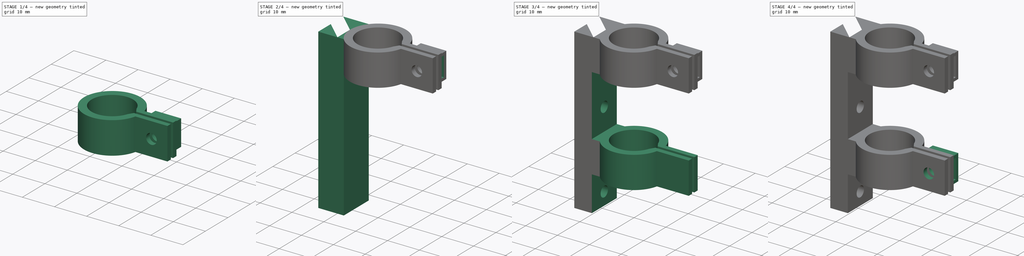
[diagram: build sequence overview — one tinted view per stage of 4, left to right]
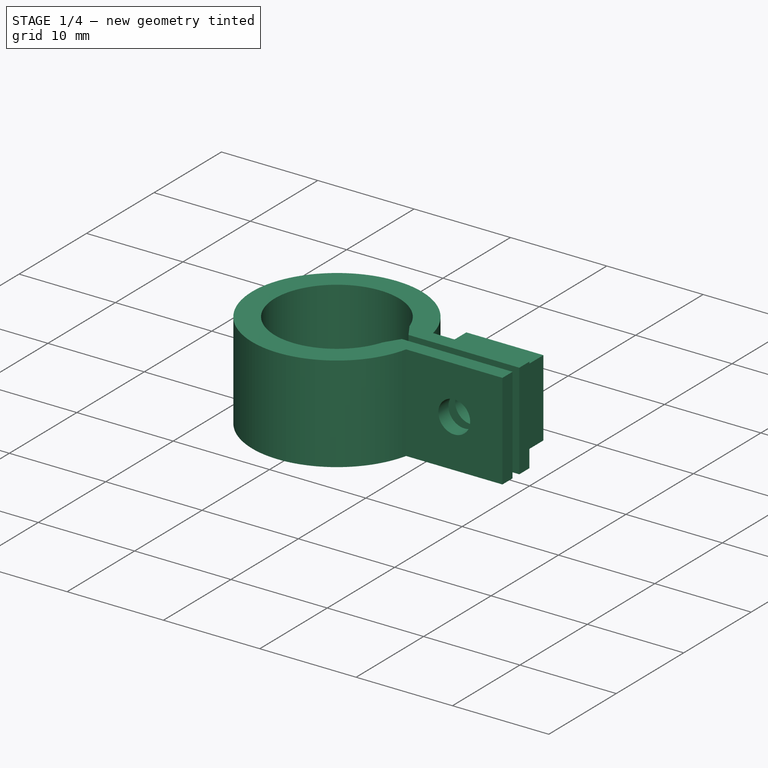
[diagram: stage 1 of 4 — iso view after this stage's code; geometry added in this stage tinted green]
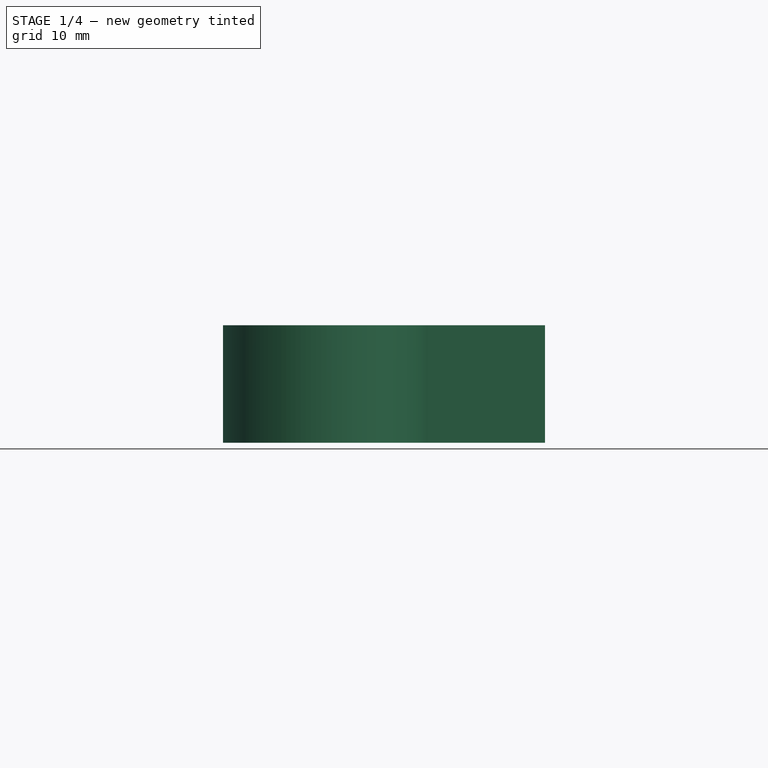
[diagram: stage 1 of 4 — front view after this stage's code; geometry added in this stage tinted green]
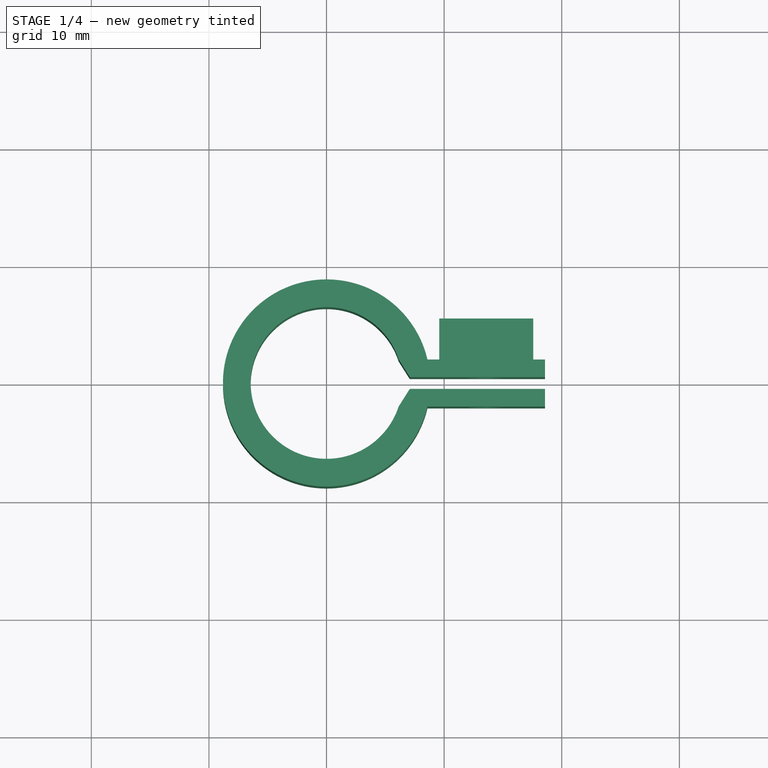
[diagram: stage 1 of 4 — top view after this stage's code; geometry added in this stage tinted green]
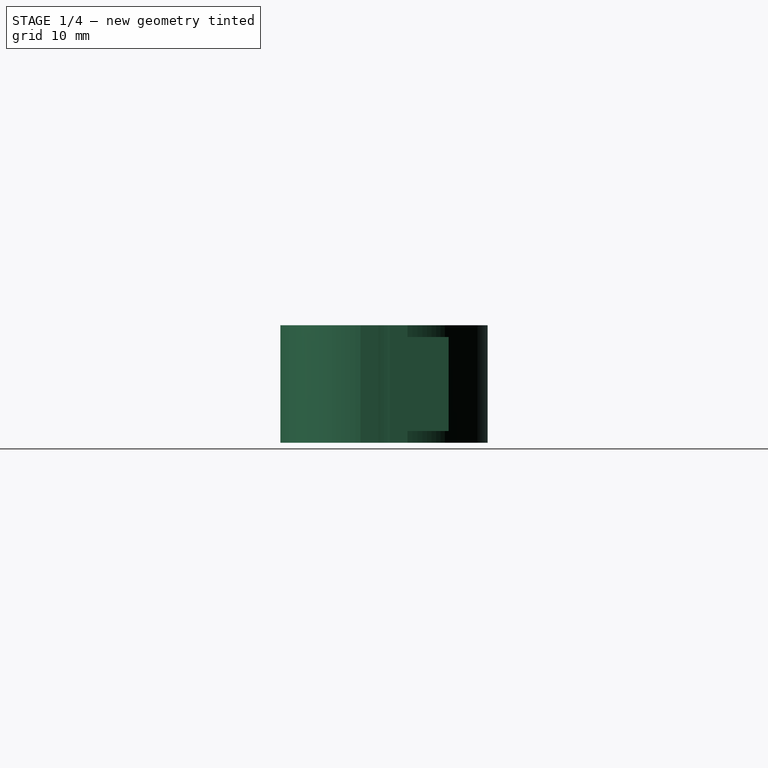
[diagram: stage 1 of 4 — right view after this stage's code; geometry added in this stage tinted green]
FCSTD DOCUMENT  (FreeCAD 0.18.4R)
Label: mount_boomarm
License: All rights reserved
LicenseURL: http://en.wikipedia.org/wiki/All_rights_reserved
objects: Sketcher::SketchObject×11, PartDesign::Pad×6, PartDesign::Hole×3, PartDesign::Pocket×3, PartDesign::Body×1
note: 36 computed .brp shape members not serialized (recipe doc carries the construction recipe); baked Part::Feature solids carry a one-line shape summary decoded from their .brp

FEATURE [Sketcher::SketchObject] Sketch
  MapMode = 5
  Support = -> [XY_Plane]
  sketch-geometry (13):
    g0: ArcOfCircle CenterX=0 CenterY=0 CenterZ=0 NormalX=0 NormalY=0 NormalZ=1 AngleXU=0 Radius=6.45 StartAngle=0.315275 EndAngle=5.96791
    g1: LineSegment [constr] StartX=6.13209 StartY=2 StartZ=0 EndX=6.13209 EndY=-2 EndZ=0
    g2: ArcOfCircle CenterX=0 CenterY=0 CenterZ=0 NormalX=0 NormalY=0 NormalZ=1 AngleXU=0 Radius=8.81 StartAngle=0.229011 EndAngle=6.05417
    g3: LineSegment [constr] StartX=6.13209 StartY=2 StartZ=0 EndX=8.57998 EndY=2 EndZ=0
    g4: LineSegment [constr] StartX=8.57998 StartY=-2 StartZ=0 EndX=6.13209 EndY=-2 EndZ=0
    g5: LineSegment StartX=8.57998 StartY=-2 StartZ=0 EndX=18.58 EndY=-2 EndZ=0
    g6: LineSegment StartX=18.58 StartY=-2 StartZ=0 EndX=18.58 EndY=-0.5 EndZ=0
    g7: LineSegment StartX=18.58 StartY=-0.5 StartZ=0 EndX=7.07998 EndY=-0.5 EndZ=0
    g8: LineSegment StartX=7.07998 StartY=-0.5 StartZ=0 EndX=6.13209 EndY=-2 EndZ=0
    g9: LineSegment StartX=6.13209 StartY=2 StartZ=0 EndX=7.07998 EndY=0.5 EndZ=0
    g10: LineSegment StartX=7.07998 StartY=0.5 StartZ=0 EndX=18.58 EndY=0.5 EndZ=0
    g11: LineSegment StartX=18.58 StartY=0.5 StartZ=0 EndX=18.58 EndY=2 EndZ=0
    g12: LineSegment StartX=18.58 StartY=2 StartZ=0 EndX=8.57998 EndY=2 EndZ=0
  constraints (36):
    c: Coincident(g0,g-1)
    c: Diameter(g0) = 12.9
    c: Coincident(g1,g0)
    c: Coincident(g1,g0)
    c: Vertical(g1)
    c: DistanceY(g1,g1) = 4
    c: Coincident(g2,g0)
    c: Coincident(g3,g0)
    c: Coincident(g3,g2)
    c: Horizontal(g3)
    c: Coincident(g4,g2)
    c: Coincident(g4,g0)
    c: Horizontal(g4)
    c: Coincident(g5,g2)
    c: Horizontal(g5)
    c: Coincident(g6,g5)
    c: Vertical(g6)
    c: Coincident(g7,g6)
    c: Horizontal(g7)
    c: Coincident(g8,g7)
    c: Coincident(g8,g0)
    c: Coincident(g9,g0)
    c: Coincident(g10,g9)
    c: Horizontal(g10)
    c: Vertical(g11)
    c: Coincident(g12,g11)
    c: Coincident(g12,g2)
    c: Horizontal(g12)
    c: Equal(g11,g6)
    c: Coincident(g11,g10)
    c: Equal(g7,g10)
    c: Equal(g5,g12)
    c: DistanceY(g11,g11) = 1.5
    c: DistanceX(g5,g5) = 10
    c: DistanceX(g7,g7) = 11.5
    c: Diameter(g2) = 17.62
FEATURE [PartDesign::Pad] Pad
  Length = 10
  Length2 = 100
  Profile = -> Sketch
  Type = 0
FEATURE [Sketcher::SketchObject] Sketch001
  ExternalGeometry = -> [Pad]
  MapMode = 5
  Placement = pos=(0,-2,0) rot=(1,0,0;1.5708rad)
  Support = -> [Pad]
  sketch-geometry (3):
    g0: Circle CenterX=13.58 CenterY=5 CenterZ=0 NormalX=0 NormalY=0 NormalZ=1 AngleXU=0 Radius=2.2
    g1: LineSegment [constr] StartX=13.58 StartY=10 StartZ=0 EndX=13.58 EndY=0 EndZ=0
    g2: LineSegment [constr] StartX=18.58 StartY=5 StartZ=0 EndX=0 EndY=5 EndZ=0
  constraints (9):
    c: PointOnObject(g1,g-1)
    c: Vertical(g1)
    c: PointOnObject(g2,g-2)
    c: Horizontal(g2)
    c: Symmetric(g-4,g-4,g2)
    c: Symmetric(g-4,g-3,g1)
    c: PointOnObject(g0,g1)
    c: PointOnObject(g0,g2)
    c: Diameter(g0) = 4.4
FEATURE [PartDesign::Hole] Hole
  BaseFeature = -> Pad
  Depth = 25
  DepthType = 1
  Diameter = 3.3
  DrillPoint = 1
  DrillPointAngle = 118
  HoleCutCountersinkAngle = 90
  HoleCutDepth = 0
  HoleCutDiameter = 3
  HoleCutType = 0
  ModelActualThread = false
  Profile = -> Sketch001
  Tapered = false
  TaperedAngle = 90
  ThreadAngle = 0
  ThreadClass = 0
  ThreadCutOffInner = 0
  ThreadCutOffOuter = 0
  ThreadDirection = 0
  ThreadFit = 0
  ThreadPitch = 0
  ThreadSize = 3
  ThreadType = 1
  Threaded = false
FEATURE [Sketcher::SketchObject] Sketch002
  ExternalGeometry = -> [Hole]
  MapMode = 5
  Placement = pos=(0,2,0) rot=(0,0.707107,0.707107;3.14159rad)
  Support = -> [Hole]
  sketch-geometry (4):
    g0: LineSegment StartX=-9.57998 StartY=9 StartZ=0 EndX=-17.58 EndY=9 EndZ=0
    g1: LineSegment StartX=-17.58 StartY=9 StartZ=0 EndX=-17.58 EndY=1 EndZ=0
    g2: LineSegment StartX=-17.58 StartY=1 StartZ=0 EndX=-9.57998 EndY=1 EndZ=0
    g3: LineSegment StartX=-9.57998 StartY=1 StartZ=0 EndX=-9.57998 EndY=9 EndZ=0
  constraints (11):
    c: Coincident(g0,g1)
    c: Coincident(g1,g2)
    c: Coincident(g2,g3)
    c: Coincident(g3,g0)
    c: Horizontal(g0)
    c: Horizontal(g2)
    c: Vertical(g1)
    c: Vertical(g3)
    c: Symmetric(g0,g1,g-3)
    c: DistanceY(g3,g3) = 8
    c: DistanceX(g0,g0) = 8
FEATURE [PartDesign::Pad] Pad001
  BaseFeature = -> Hole
  Length = 3.5
  Length2 = 100
  Profile = -> Sketch002
  Type = 0
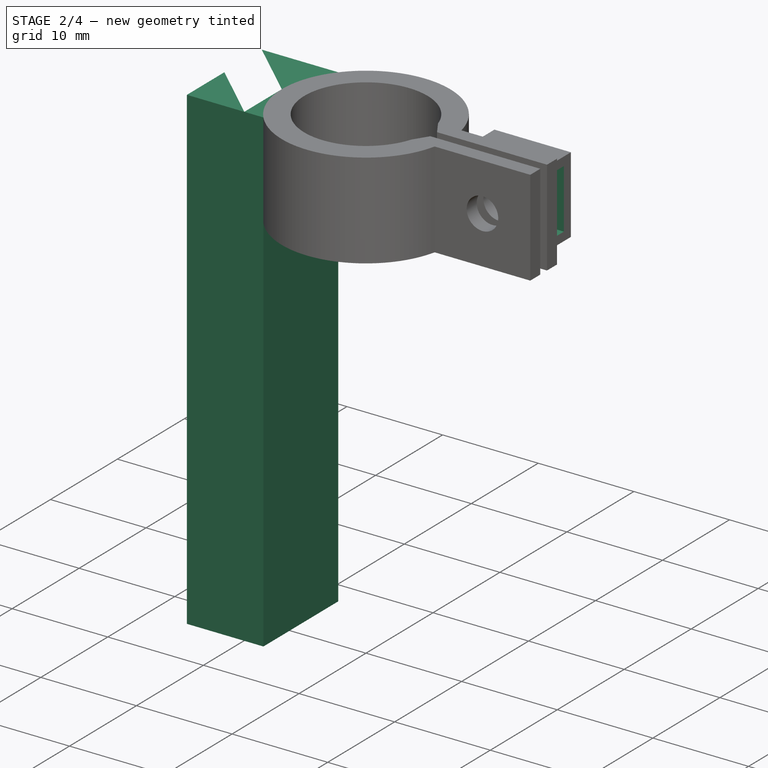
[diagram: stage 2 of 4 — iso view after this stage's code; geometry added in this stage tinted green]
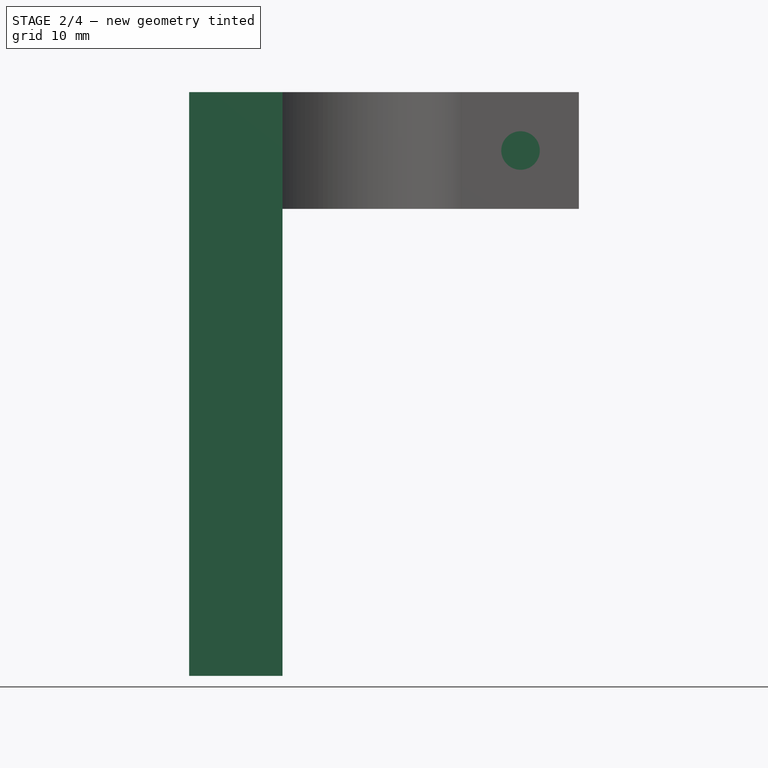
[diagram: stage 2 of 4 — front view after this stage's code; geometry added in this stage tinted green]
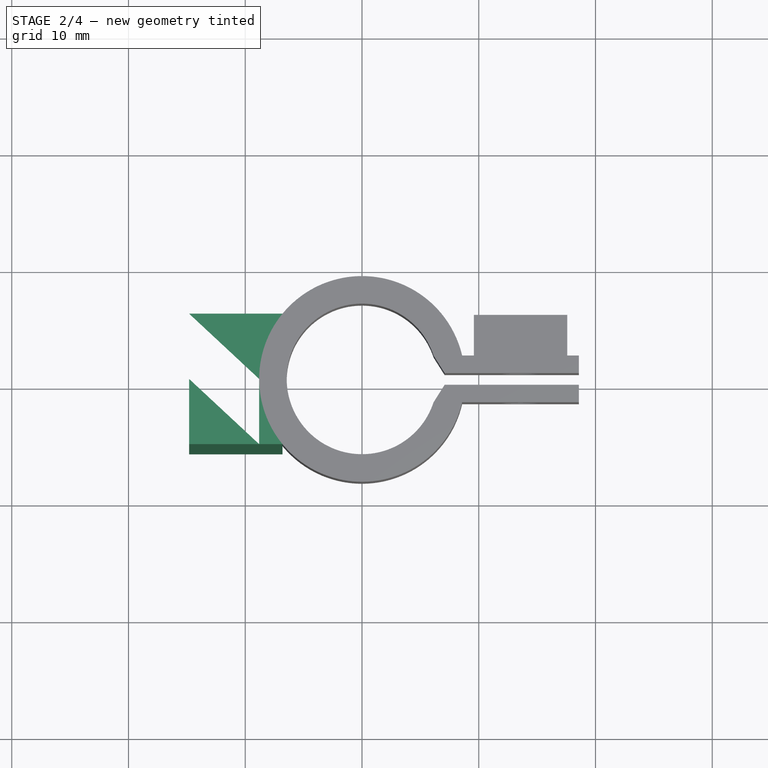
[diagram: stage 2 of 4 — top view after this stage's code; geometry added in this stage tinted green]
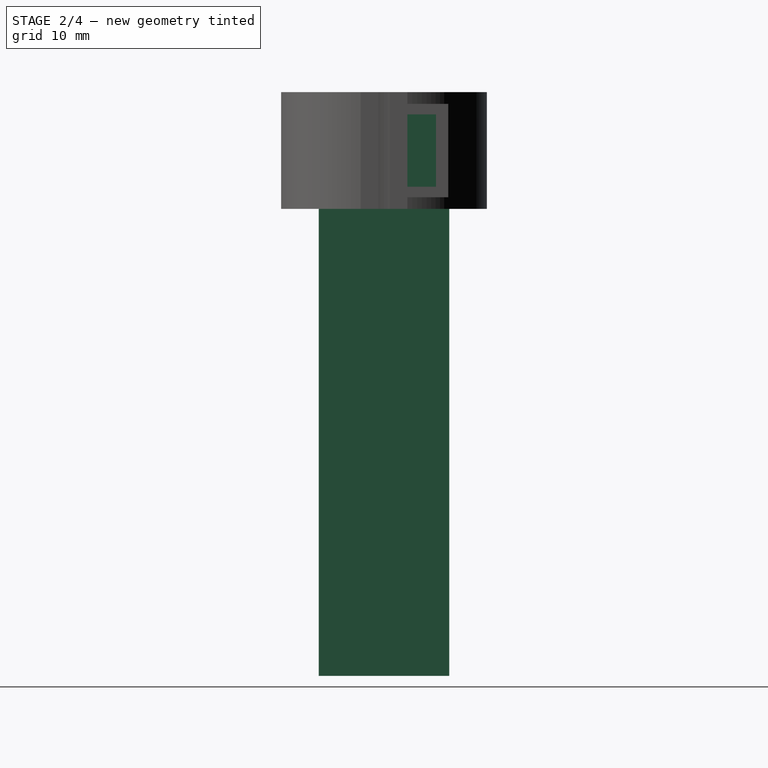
[diagram: stage 2 of 4 — right view after this stage's code; geometry added in this stage tinted green]
FEATURE [Sketcher::SketchObject] Sketch003
  ExternalGeometry = -> [Pad001]
  MapMode = 5
  Placement = pos=(17.58,0,0) rot=(0.57735,0.57735,0.57735;2.0944rad)
  Support = -> [Pad001]
  sketch-geometry (5):
    g0: LineSegment StartX=2 StartY=8.1 StartZ=0 EndX=4.45 EndY=8.1 EndZ=0
    g1: LineSegment StartX=4.45 StartY=8.1 StartZ=0 EndX=4.45 EndY=1.9 EndZ=0
    g2: LineSegment StartX=4.45 StartY=1.9 StartZ=0 EndX=2 EndY=1.9 EndZ=0
    g3: LineSegment StartX=2 StartY=1.9 StartZ=0 EndX=2 EndY=8.1 EndZ=0
    g4: GeomPoint X=2 Y=5 Z=0
  constraints (12):
    c: Coincident(g0,g1)
    c: Coincident(g1,g2)
    c: Coincident(g2,g3)
    c: Coincident(g3,g0)
    c: Horizontal(g0)
    c: Horizontal(g2)
    c: Vertical(g1)
    c: Vertical(g3)
    c: DistanceX(g2,g2) = 2.45
    c: DistanceY(g1,g1) = 6.2
    c: Symmetric(g0,g2,g4)
    c: Symmetric(g-3,g-3,g4)
FEATURE [PartDesign::Pocket] Pocket
  BaseFeature = -> Pad001
  Length = 7
  Length2 = 100
  Profile = -> Sketch003
  Type = 0
FEATURE [Sketcher::SketchObject] Sketch004
  ExternalGeometry = -> [Pocket]
  MapMode = 5
  Placement = pos=(0,0,10) rot=(0,0,1;0rad)
  Support = -> [Pocket]
  sketch-geometry (4):
    g0: LineSegment StartX=-6.81 StartY=5.58928 StartZ=0 EndX=-8.81 EndY=5.58928 EndZ=0
    g1: LineSegment StartX=-8.81 StartY=5.58928 StartZ=0 EndX=-8.81 EndY=-5.58928 EndZ=0
    g2: LineSegment StartX=-8.81 StartY=-5.58928 StartZ=0 EndX=-6.81 EndY=-5.58928 EndZ=0
    g3: LineSegment StartX=-6.81 StartY=-5.58928 StartZ=0 EndX=-6.81 EndY=5.58928 EndZ=0
  constraints (11):
    c: Coincident(g0,g1)
    c: Coincident(g1,g2)
    c: Coincident(g2,g3)
    c: Coincident(g3,g0)
    c: Horizontal(g0)
    c: Horizontal(g2)
    c: Vertical(g1)
    c: Tangent(g-3,g1)
    c: Symmetric(g0,g2,g-1)
    c: PointOnObject(g0,g-3)
    c: DistanceX(g0,g0) = 2
FEATURE [PartDesign::Pad] Pad002
  BaseFeature = -> Pocket
  Length = 50
  Length2 = 100
  Profile = -> Sketch004
  Reversed = true
  Type = 0
FEATURE [Sketcher::SketchObject] Sketch005
  ExternalGeometry = -> [Pad002]
  MapMode = 5
  Placement = pos=(-6.81,0,0) rot=(0.57735,0.57735,0.57735;2.0944rad)
  Support = -> [Pad002]
  sketch-geometry (2):
    g0: Circle CenterX=0 CenterY=-36 CenterZ=0 NormalX=0 NormalY=0 NormalZ=1 AngleXU=0 Radius=1.65
    g1: Circle CenterX=0 CenterY=-12 CenterZ=0 NormalX=0 NormalY=0 NormalZ=1 AngleXU=0 Radius=1.65
  constraints (6):
    c: PointOnObject(g0,g-2)
    c: PointOnObject(g1,g-2)
    c: DistanceY(g0,g1) = 24
    c: Equal(g0,g1)
    c: Diameter(g0) = 3.3
    c: DistanceY(g-3,g0) = 4
FEATURE [PartDesign::Pad] Pad003
  BaseFeature = -> Pad002
  Length = 6
  Length2 = 100
  Profile = -> Pad002 [Face33]
  Type = 0
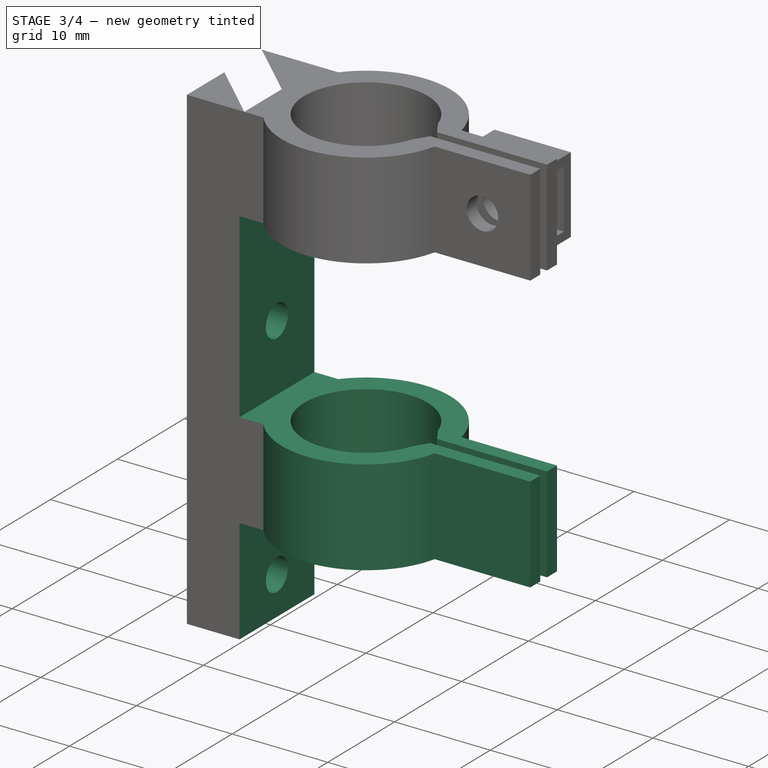
[diagram: stage 3 of 4 — iso view after this stage's code; geometry added in this stage tinted green]
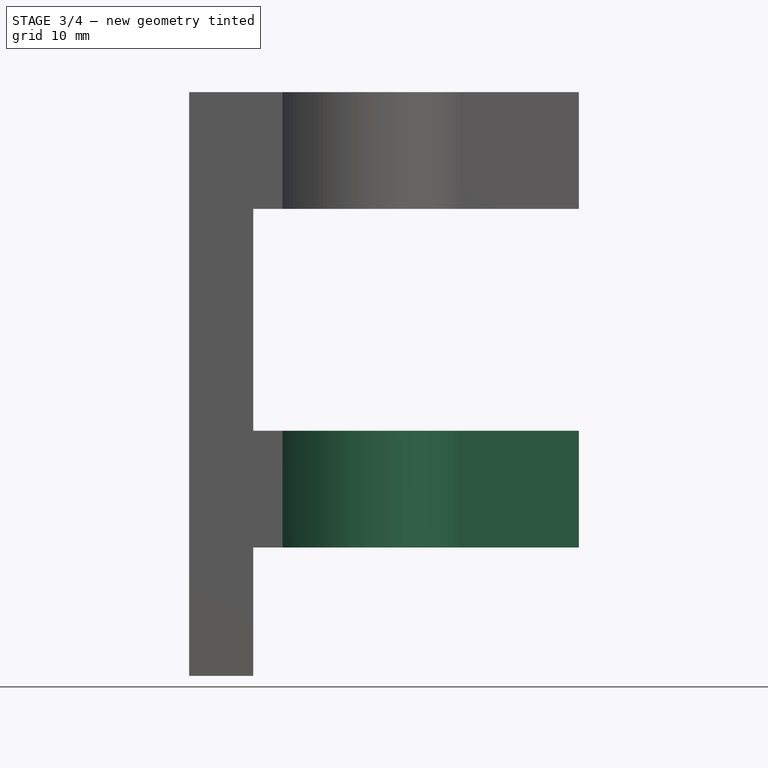
[diagram: stage 3 of 4 — front view after this stage's code; geometry added in this stage tinted green]
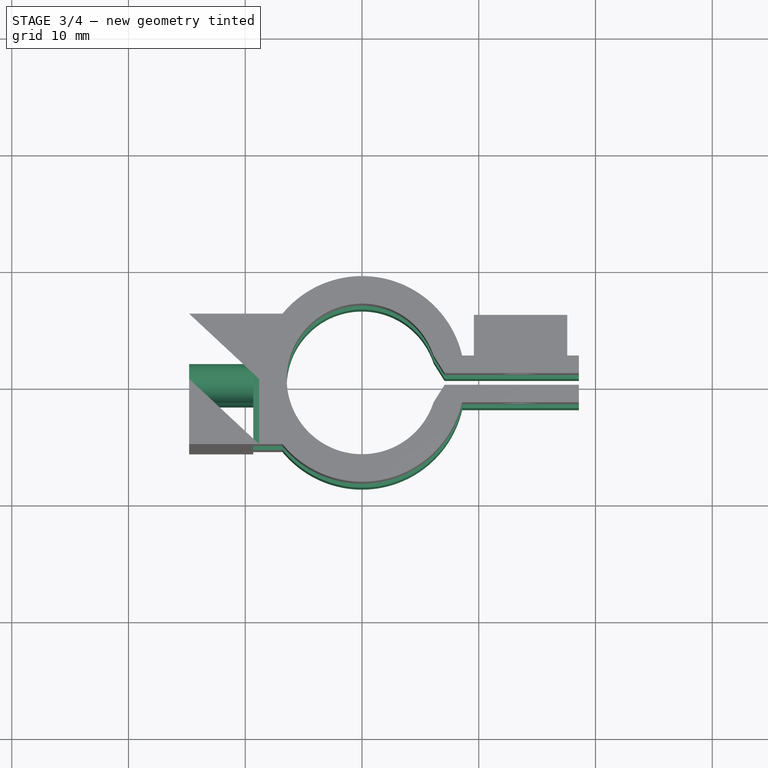
[diagram: stage 3 of 4 — top view after this stage's code; geometry added in this stage tinted green]
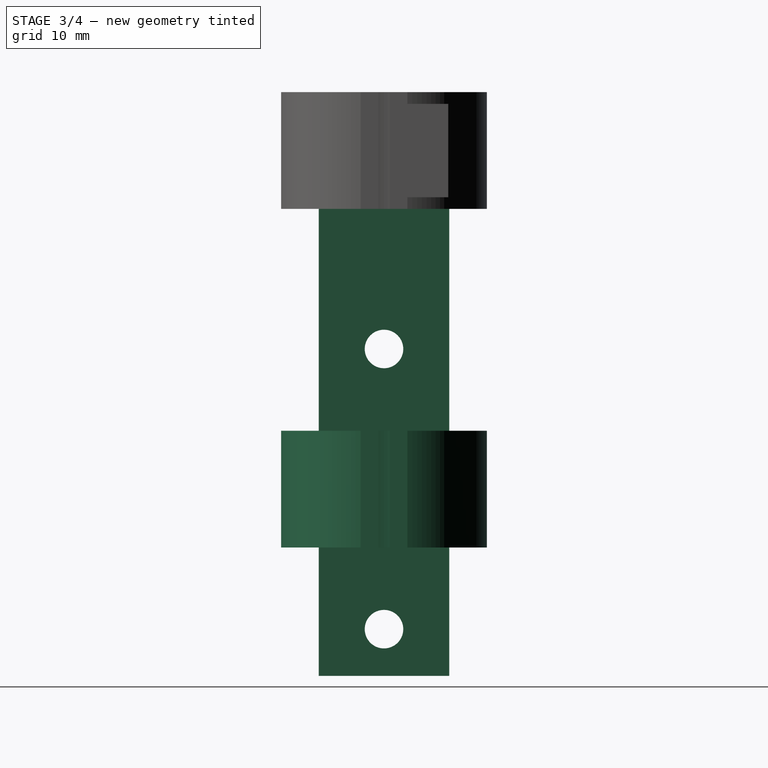
[diagram: stage 3 of 4 — right view after this stage's code; geometry added in this stage tinted green]
FEATURE [PartDesign::Hole] Hole001
  BaseFeature = -> Pad003
  Depth = 25
  DepthType = 0
  Diameter = 3.3
  DrillPoint = 1
  DrillPointAngle = 118
  HoleCutCountersinkAngle = 90
  HoleCutDepth = 0
  HoleCutDiameter = 3
  HoleCutType = 0
  ModelActualThread = false
  Profile = -> Sketch005
  Tapered = false
  TaperedAngle = 90
  ThreadAngle = 0
  ThreadClass = 0
  ThreadCutOffInner = 0
  ThreadCutOffOuter = 0
  ThreadDirection = 0
  ThreadFit = 0
  ThreadPitch = 0
  ThreadSize = 3
  ThreadType = 1
  Threaded = false
FEATURE [Sketcher::SketchObject] Sketch006
  ExternalGeometry = -> [Hole001]
  MapMode = 5
  Placement = pos=(0,-5.58928,0) rot=(1,0,0;1.5708rad)
  Support = -> [Hole001]
  sketch-geometry (4):
    g0: LineSegment StartX=-6.81 StartY=-40 StartZ=0 EndX=-9.31 EndY=-40 EndZ=0
    g1: LineSegment StartX=-9.31 StartY=-40 StartZ=0 EndX=-9.31 EndY=0 EndZ=0
    g2: LineSegment StartX=-9.31 StartY=0 StartZ=0 EndX=-6.81 EndY=0 EndZ=0
    g3: LineSegment StartX=-6.81 StartY=0 StartZ=0 EndX=-6.81 EndY=-40 EndZ=0
  constraints (11):
    c: Coincident(g0,g1)
    c: Coincident(g1,g2)
    c: Coincident(g2,g3)
    c: Coincident(g3,g0)
    c: Horizontal(g0)
    c: Horizontal(g2)
    c: Vertical(g1)
    c: Vertical(g3)
    c: Coincident(g0,g-4)
    c: PointOnObject(g1,g-1)
    c: DistanceX(g0,g0) = 2.5
FEATURE [PartDesign::Pocket] Pocket001
  BaseFeature = -> Hole001
  Length = 5
  Length2 = 100
  Profile = -> Sketch006
  Type = 1
FEATURE [Sketcher::SketchObject] Sketch007
  AttachmentOffset = pos=(0,0,19) rot=(0,0,1;0rad)
  ExternalGeometry = -> [Pocket001]
  MapMode = 5
  Placement = pos=(0,0,-19) rot=(1,0,0;3.14159rad)
  Support = -> [Pocket001]
  sketch-geometry (14):
    g0: ArcOfCircle CenterX=6e-15 CenterY=2.43e-14 CenterZ=0 NormalX=0 NormalY=0 NormalZ=1 AngleXU=0 Radius=6.45 StartAngle=0.315275 EndAngle=5.96791
    g1: ArcOfCircle CenterX=6e-15 CenterY=2.43e-14 CenterZ=0 NormalX=0 NormalY=0 NormalZ=1 AngleXU=0 Radius=8.81 StartAngle=0.229011 EndAngle=2.45433
    g2: ArcOfCircle CenterX=6e-15 CenterY=2.43e-14 CenterZ=0 NormalX=0 NormalY=0 NormalZ=1 AngleXU=0 Radius=8.81 StartAngle=3.82886 EndAngle=6.05417
    g3: LineSegment StartX=-6.81 StartY=5.58928 StartZ=0 EndX=-9.31 EndY=5.58928 EndZ=0
    g4: LineSegment StartX=-9.31 StartY=5.58928 StartZ=0 EndX=-9.31 EndY=-5.58928 EndZ=0
    g5: LineSegment StartX=-9.31 StartY=-5.58928 StartZ=0 EndX=-6.81 EndY=-5.58928 EndZ=0
    g6: LineSegment StartX=6.13209 StartY=2 StartZ=0 EndX=7.07998 EndY=0.5 EndZ=0
    g7: LineSegment StartX=7.07998 StartY=-0.5 StartZ=0 EndX=6.13209 EndY=-2 EndZ=0
    g8: LineSegment StartX=7.07998 StartY=-0.5 StartZ=0 EndX=18.58 EndY=-0.5 EndZ=0
    g9: LineSegment StartX=8.57998 StartY=-2 StartZ=0 EndX=18.58 EndY=-2 EndZ=0
    g10: LineSegment StartX=18.58 StartY=-2 StartZ=0 EndX=18.58 EndY=-0.5 EndZ=0
    g11: LineSegment StartX=7.07998 StartY=0.5 StartZ=0 EndX=18.58 EndY=0.5 EndZ=0
    g12: LineSegment StartX=18.58 StartY=0.5 StartZ=0 EndX=18.58 EndY=2 EndZ=0
    g13: LineSegment StartX=18.58 StartY=2 StartZ=0 EndX=8.57998 EndY=2 EndZ=0
  constraints (31):
    c: Coincident(g0,g-1)
    c: Coincident(g0,g-3)
    c: Coincident(g0,g-3)
    c: Coincident(g1,g0)
    c: Coincident(g1,g-4)
    c: Coincident(g1,g-7)
    c: Coincident(g2,g0)
    c: Coincident(g2,g-5)
    c: Coincident(g3,g1)
    c: Coincident(g3,g-11)
    c: Coincident(g4,g3)
    c: Coincident(g4,g-10)
    c: Coincident(g5,g4)
    c: Coincident(g5,g-9)
    c: Coincident(g2,g5)
    c: Coincident(g6,g0)
    c: Coincident(g6,g-15)
    c: Coincident(g7,g-14)
    c: Coincident(g7,g0)
    c: Coincident(g8,g-14)
    c: Coincident(g8,g7)
    c: Coincident(g9,g2)
    c: Coincident(g9,g-17)
    c: Coincident(g10,g9)
    c: Coincident(g10,g8)
    c: Coincident(g11,g6)
    c: Coincident(g11,g-15)
    c: Coincident(g12,g11)
    c: Coincident(g12,g-16)
    c: Coincident(g13,g12)
    c: Coincident(g13,g1)
FEATURE [PartDesign::Pad] Pad004
  BaseFeature = -> Pocket001
  Length = 10
  Length2 = 100
  Profile = -> Sketch007
  Type = 0
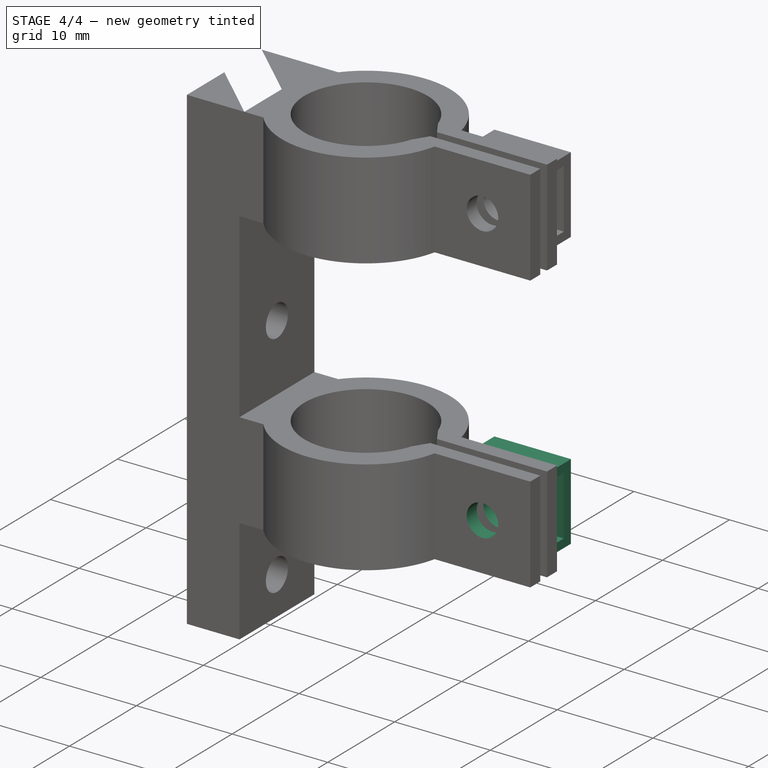
[diagram: stage 4 of 4 — iso view after this stage's code; geometry added in this stage tinted green]
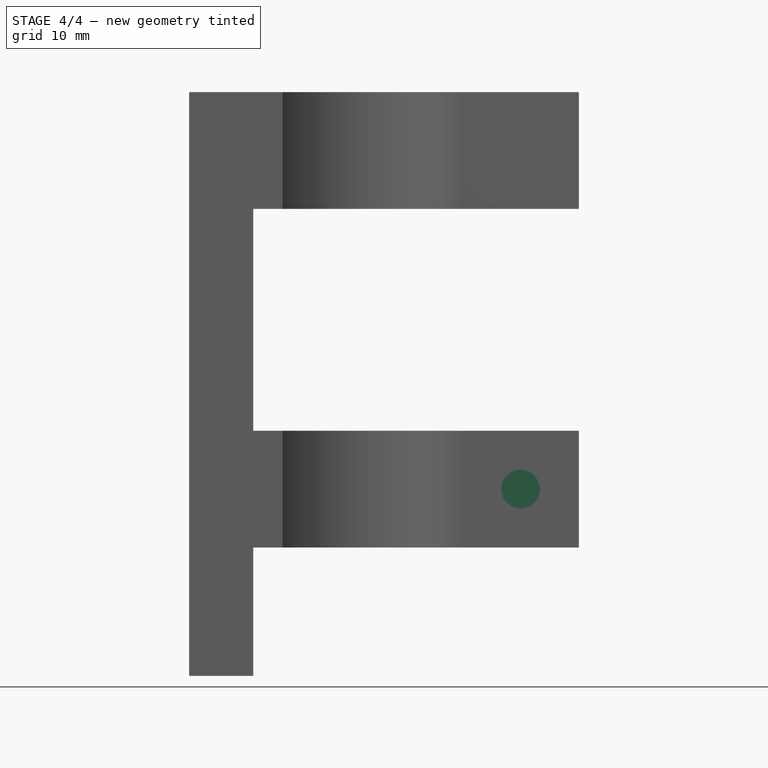
[diagram: stage 4 of 4 — front view after this stage's code; geometry added in this stage tinted green]
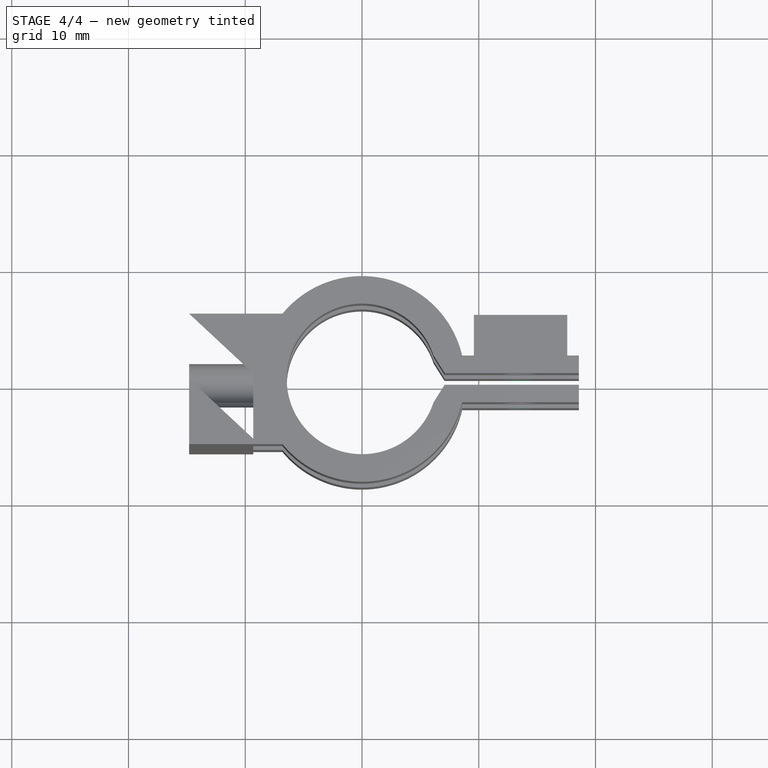
[diagram: stage 4 of 4 — top view after this stage's code; geometry added in this stage tinted green]
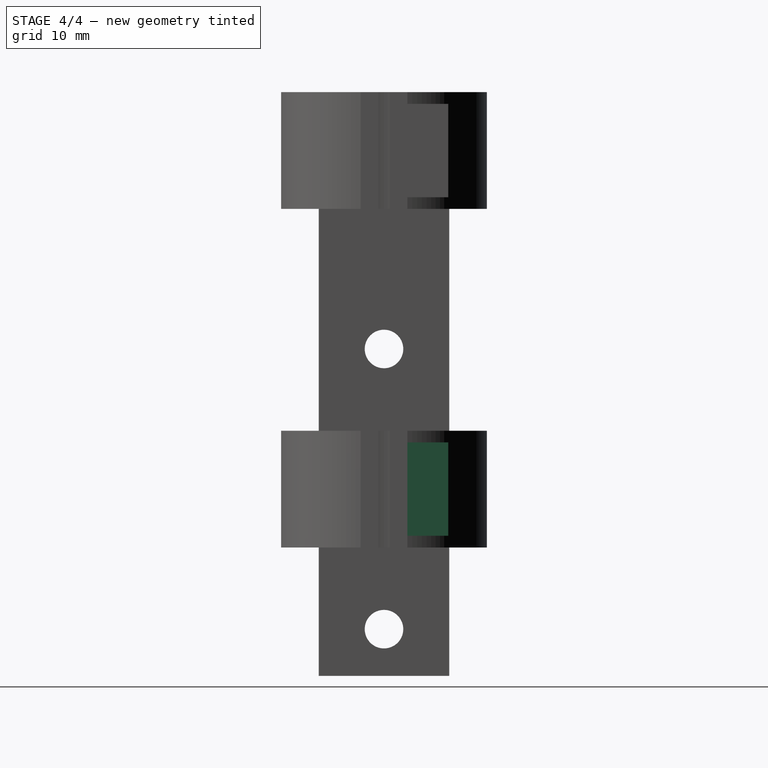
[diagram: stage 4 of 4 — right view after this stage's code; geometry added in this stage tinted green]
FEATURE [Sketcher::SketchObject] Sketch008
  ExternalGeometry = -> [Pad004]
  MapMode = 5
  Placement = pos=(6e-16,2,0) rot=(0,0.707107,0.707107;3.14159rad)
  Support = -> [Pad004]
  sketch-geometry (1):
    g0: Circle CenterX=-13.58 CenterY=-24 CenterZ=0 NormalX=0 NormalY=0 NormalZ=1 AngleXU=0 Radius=1.65
  constraints (2):
    c: Symmetric(g-3,g-4,g0)
    c: Diameter(g0) = 3.3
FEATURE [PartDesign::Hole] Hole002
  BaseFeature = -> Pad004
  Depth = 25
  DepthType = 1
  Diameter = 3.3
  DrillPoint = 1
  DrillPointAngle = 118
  HoleCutCountersinkAngle = 90
  HoleCutDepth = 0
  HoleCutDiameter = 3
  HoleCutType = 0
  ModelActualThread = false
  Profile = -> Sketch008
  Tapered = false
  TaperedAngle = 90
  ThreadAngle = 0
  ThreadClass = 0
  ThreadCutOffInner = 0
  ThreadCutOffOuter = 0
  ThreadDirection = 0
  ThreadFit = 0
  ThreadPitch = 0
  ThreadSize = 3
  ThreadType = 1
  Threaded = false
FEATURE [Sketcher::SketchObject] Sketch009
  ExternalGeometry = -> [Hole002]
  MapMode = 5
  Placement = pos=(6e-16,2,0) rot=(0,0.707107,0.707107;3.14159rad)
  Support = -> [Hole002]
  sketch-geometry (5):
    g0: LineSegment StartX=-17.58 StartY=-28 StartZ=0 EndX=-9.57998 EndY=-28 EndZ=0
    g1: LineSegment StartX=-9.57998 StartY=-28 StartZ=0 EndX=-9.57998 EndY=-20 EndZ=0
    g2: LineSegment StartX=-9.57998 StartY=-20 StartZ=0 EndX=-17.58 EndY=-20 EndZ=0
    g3: LineSegment StartX=-17.58 StartY=-20 StartZ=0 EndX=-17.58 EndY=-28 EndZ=0
    g4: GeomPoint X=-13.58 Y=-24 Z=0
  constraints (12):
    c: Coincident(g0,g1)
    c: Coincident(g1,g2)
    c: Coincident(g2,g3)
    c: Coincident(g3,g0)
    c: Horizontal(g0)
    c: Horizontal(g2)
    c: Vertical(g1)
    c: Vertical(g3)
    c: Symmetric(g0,g1,g4)
    c: Symmetric(g-3,g-4,g4)
    c: Equal(g3,g-5)
    c: Equal(g3,g2)
FEATURE [PartDesign::Pad] Pad005
  BaseFeature = -> Hole002
  Length = 3.5
  Length2 = 100
  Profile = -> Sketch009
  Type = 0
FEATURE [Sketcher::SketchObject] Sketch010
  ExternalGeometry = -> [Pad005]
  MapMode = 5
  Placement = pos=(17.58,-5.1e-15,0) rot=(0.57735,0.57735,0.57735;2.0944rad)
  Support = -> [Pad005]
  sketch-geometry (5):
    g0: LineSegment StartX=2 StartY=-20.9 StartZ=0 EndX=4.45 EndY=-20.9 EndZ=0
    g1: LineSegment StartX=4.45 StartY=-20.9 StartZ=0 EndX=4.45 EndY=-27.1 EndZ=0
    g2: LineSegment StartX=4.45 StartY=-27.1 StartZ=0 EndX=2 EndY=-27.1 EndZ=0
    g3: LineSegment StartX=2 StartY=-27.1 StartZ=0 EndX=2 EndY=-20.9 EndZ=0
    g4: GeomPoint X=2 Y=-24 Z=0
  constraints (12):
    c: Coincident(g0,g1)
    c: Coincident(g1,g2)
    c: Coincident(g2,g3)
    c: Coincident(g3,g0)
    c: Horizontal(g0)
    c: Horizontal(g2)
    c: Vertical(g1)
    c: Vertical(g3)
    c: Equal(g-4,g0)
    c: Equal(g-5,g1)
    c: Symmetric(g-3,g-3,g4)
    c: Symmetric(g0,g2,g4)
FEATURE [PartDesign::Pocket] Pocket002
  BaseFeature = -> Pad005
  Length = 7
  Length2 = 100
  Profile = -> Sketch010
  Type = 0
FEATURE [PartDesign::Body] Body
  Group = -> [Sketch,Pad,Sketch001,Hole,Sketch002,Pad001,Sketch003,Pocket,Sketch004,Pad002,Sketch005,Pad003,Hole001,Sketch006,Pocket001,Sketch007,Pad004,Sketch008,Hole002,Sketch009,Pad005,Sketch010,Pocket002]
  Origin = -> Origin
  Tip = -> Pocket002
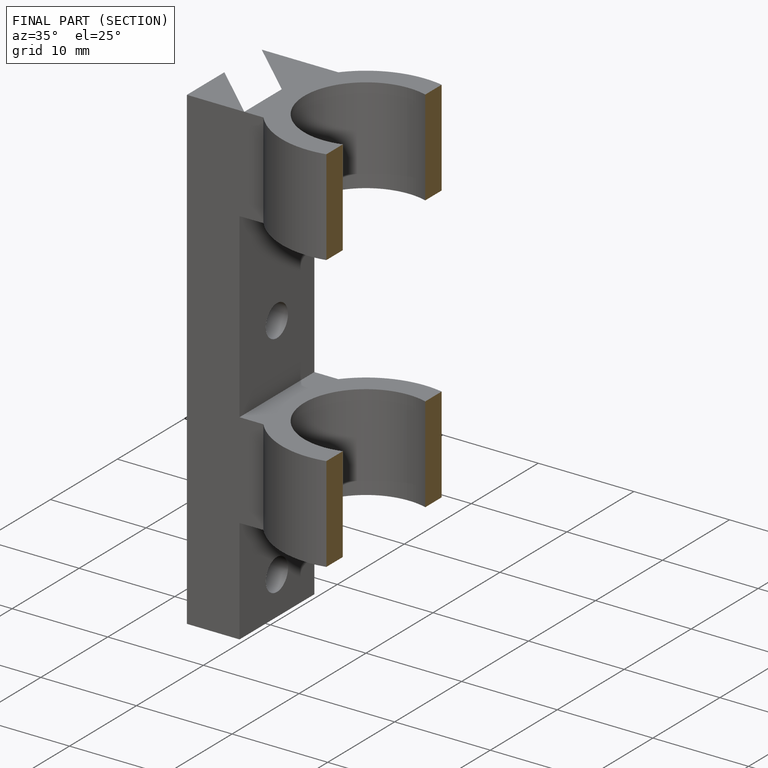
[diagram: finished part — half-section view (interior)]
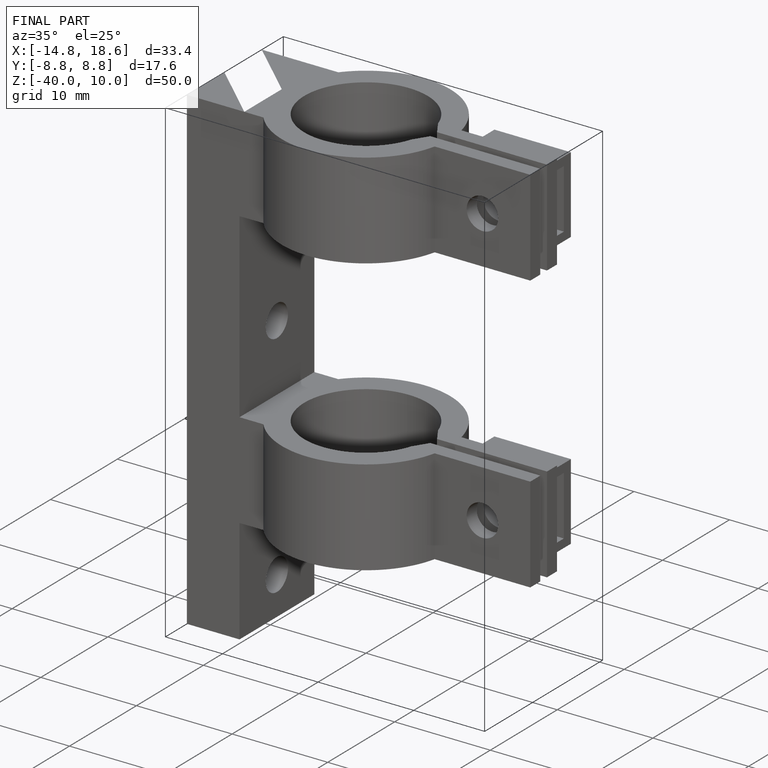
[diagram: finished part — iso view with bounding-box wireframe]
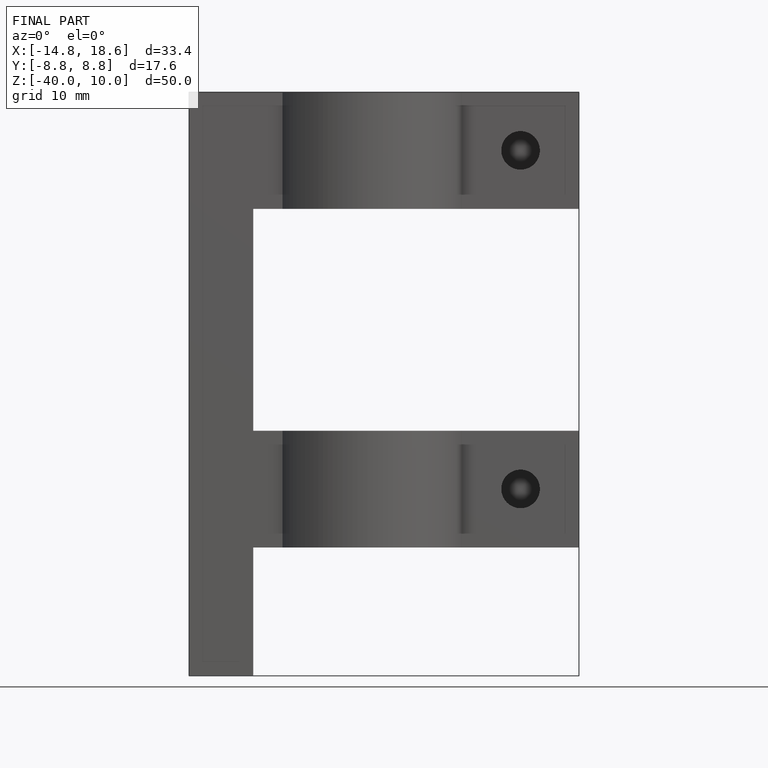
[diagram: finished part — front view with bounding-box wireframe]
